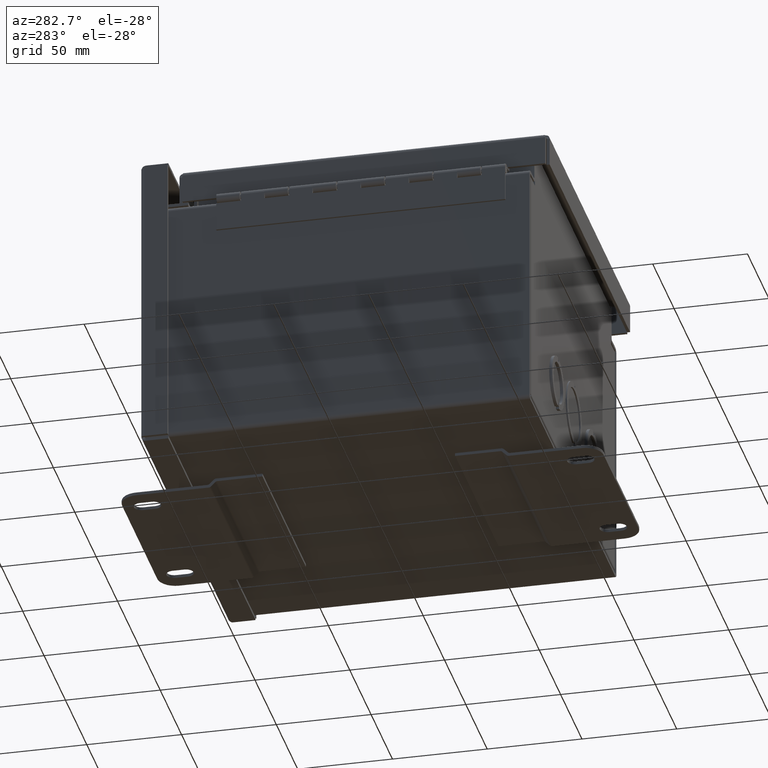
[diagram: clean part render]
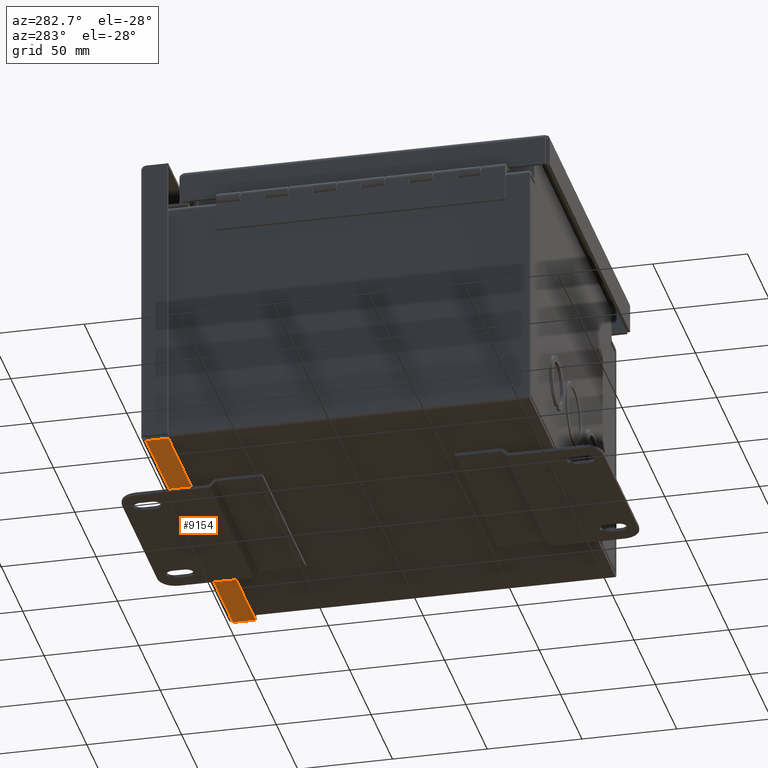
[diagram: same view with one face highlighted and labeled with its STEP entity id]
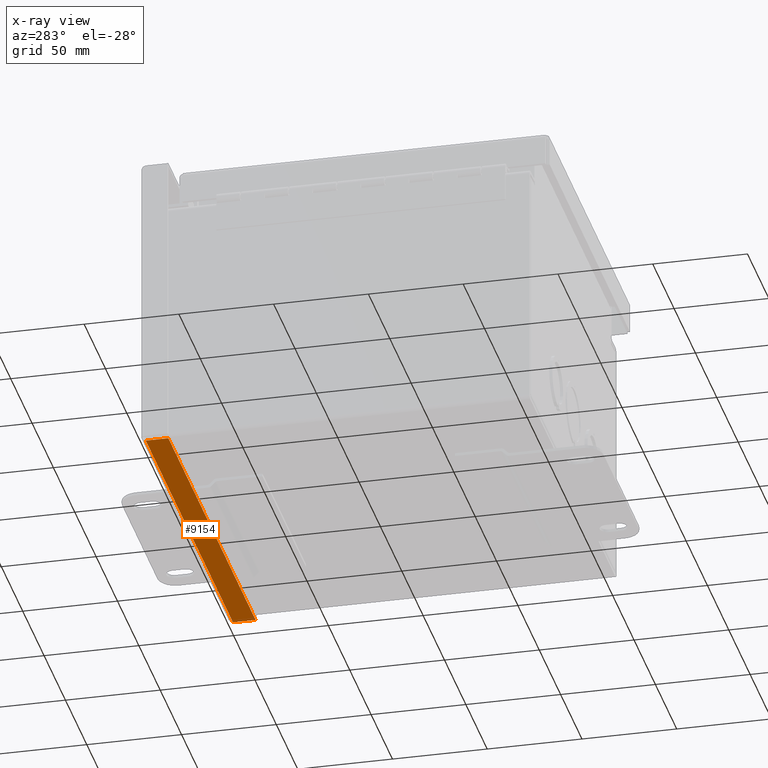
[diagram: x-ray of the same camera — body ghosted, the highlighted face saturated]
A machine part, auxiliary view. The second image highlights one B-rep face of the part: STEP entity #9154.
The next image is the same camera in x-ray: the body ghosted, the highlighted face saturated — about 0% of this face is hidden behind the body in this view.
In plain terms, the highlighted planar face has unit normal (0, 0, 1).
Its self-contained STEP definition (entity closure, byte-faithful):
#467=PLANE($,#9774);
#864=FACE_OUTER_BOUND($,#1391,.T.);
#1391=EDGE_LOOP($,(#6828,#6829,#6830,#6831));
#2408=LINE($,#13837,#3334);
#2414=LINE($,#13866,#3340);
#2420=LINE($,#13930,#3346);
#2422=LINE($,#13933,#3348);
#3334=VECTOR($,#11183,8.04040291308792);
#3340=VECTOR($,#11193,0.46875);
#3346=VECTOR($,#11201,0.46875);
#3348=VECTOR($,#11205,8.04040291308792);
#4152=VERTEX_POINT($,#13835);
#4153=VERTEX_POINT($,#13836);
#4160=VERTEX_POINT($,#13865);
#4163=VERTEX_POINT($,#13929);
#5099=EDGE_CURVE($,#4152,#4153,#2408,.T.);
#5107=EDGE_CURVE($,#4160,#4153,#2414,.T.);
#5115=EDGE_CURVE($,#4152,#4163,#2420,.T.);
#5117=EDGE_CURVE($,#4163,#4160,#2422,.T.);
#6828=ORIENTED_EDGE($,*,*,#5099,.T.);
#6829=ORIENTED_EDGE($,*,*,#5107,.F.);
#6830=ORIENTED_EDGE($,*,*,#5117,.F.);
#6831=ORIENTED_EDGE($,*,*,#5115,.F.);
#9154=ADVANCED_FACE($,(#864),#467,.F.);
#9774=AXIS2_PLACEMENT_3D($,#13934,#11206,#11207);
#11183=DIRECTION($,(1.,8.4544698318972E-017,1.49639902220654E-033));
#11193=DIRECTION($,(1.4791141972894E-031,-1.71512449944288E-015,-1.));
#11201=DIRECTION($,(-1.4791141972894E-031,1.71512449944288E-015,1.));
#11205=DIRECTION($,(1.,8.54171708553344E-017,-8.85425408500742E-017));
#11206=DIRECTION('center_axis',(-8.4544698318972E-017,1.,-1.83216460329914E-015));
#11207=DIRECTION('ref_axis',(1.,0.,1.40998324127395E-016));
#13835=CARTESIAN_POINT('',(-3.92645145654396,-3.15625,0.0937500000000007));
#13836=CARTESIAN_POINT('',(4.11395145654396,-3.15625,0.0937500000000007));
#13837=CARTESIAN_POINT($,(0.0937499999999999,-3.15625,0.0937500000000007));
#13865=CARTESIAN_POINT('',(4.11395145654396,-3.15625,0.5625));
#13866=CARTESIAN_POINT($,(4.11395145654396,-3.15625,0.09375));
#13929=CARTESIAN_POINT('',(-3.92645145654396,-3.15625,0.562500000000001));
#13930=CARTESIAN_POINT($,(-3.92645145654396,-3.15625,0.0937500000000007));
#13933=CARTESIAN_POINT($,(-3.92645145654396,-3.15625,0.562500000000001));
#13934=CARTESIAN_POINT('Origin',(0.0937499999999998,-3.15625,0.282583398527548));